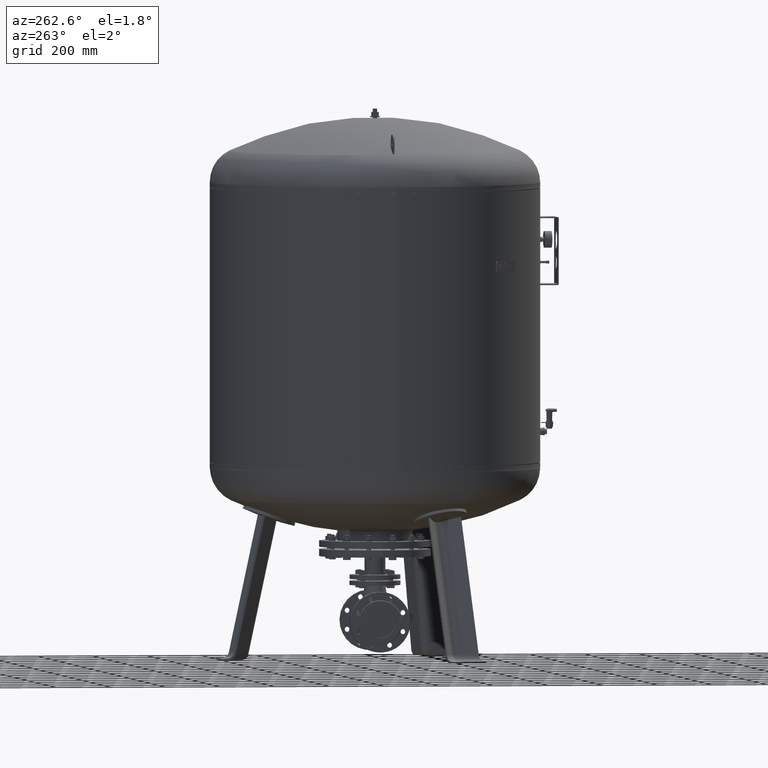
[diagram: clean part render]
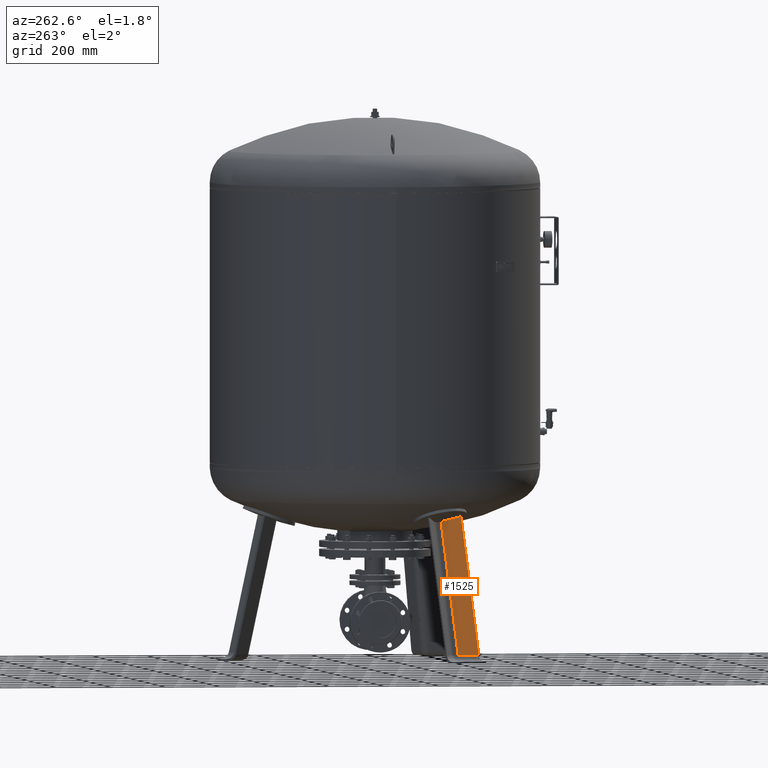
[diagram: same view with one face highlighted and labeled with its STEP entity id]
A machine part, auxiliary view. The second image highlights one B-rep face of the part: STEP entity #1525.
In plain terms, the highlighted planar face has unit normal (-0.9697, 0.1854, 0.1588).
Its self-contained STEP definition (entity closure, byte-faithful):
#1210=CARTESIAN_POINT('',(-315.335436048246950,-200.691767344436240,510.149969666713160));
#1211=VERTEX_POINT('',#1210);
#1229=CARTESIAN_POINT('',(-325.047124528705920,-271.771968126689670,533.843746499036000));
#1230=VERTEX_POINT('',#1229);
#1231=CARTESIAN_POINT('',(-325.047124528705920,-271.771968126689670,533.843746499036000));
#1232=CARTESIAN_POINT('',(-323.211592071711270,-257.513808971361580,528.403592446426270));
#1233=CARTESIAN_POINT('',(-321.307001339405250,-243.225974251741890,523.350498082422290));
#1234=CARTESIAN_POINT('',(-318.331667884720670,-221.687438673815760,516.369477981931600));
#1235=CARTESIAN_POINT('',(-317.307714099314640,-214.406460403978120,514.120476420435810));
#1236=CARTESIAN_POINT('',(-315.957534318820190,-204.991636255338110,511.371950061965830));
#1237=CARTESIAN_POINT('',(-315.647301758491780,-202.840845807966730,510.754973838816850));
#1238=CARTESIAN_POINT('',(-315.335436048246950,-200.691767344436240,510.149969666713160));
#1239=B_SPLINE_CURVE_WITH_KNOTS('',3,(#1231,#1232,#1233,#1234,#1235,#1236,#1237,#1238),.UNSPECIFIED.,.F.,.U.,(4,2,2,4),(536.144034177567730,540.433260676197730,542.629325785795340,543.280185670864850),.UNSPECIFIED.);
#1240=EDGE_CURVE('',#1230,#1211,#1239,.T.);
#1465=CARTESIAN_POINT('',(-418.341095342265480,-325.635267289667180,27.029948423057281));
#1466=VERTEX_POINT('',#1465);
#1467=CARTESIAN_POINT('',(-418.341095342265480,-325.635267289667180,27.029948423057281));
#1468=DIRECTION('',(0.180056805991956,0.103955845408880,0.978147600733805));
#1469=VECTOR('',#1468,518.136319810800960);
#1470=LINE('',#1467,#1469);
#1471=EDGE_CURVE('',#1466,#1230,#1470,.T.);
#1502=CARTESIAN_POINT('',(-430.961068097000860,-332.921411956779370,-41.527282742766886));
#1503=DIRECTION('',(-0.969740897595359,0.185430570007245,0.158802063077709));
#1504=DIRECTION('',(0.180056805991956,0.103955845408880,0.978147600733806));
#1505=AXIS2_PLACEMENT_3D('',#1502,#1503,#1504);
#1506=PLANE('',#1505);
#1507=CARTESIAN_POINT('',(-404.267871061775960,-252.036932639186010,27.029948423057284));
#1508=VERTEX_POINT('',#1507);
#1509=CARTESIAN_POINT('',(-404.267871061775960,-252.036932639186010,27.029948423057284));
#1510=DIRECTION('',(0.180056805991956,0.103955845408880,0.978147600733806));
#1511=VECTOR('',#1510,493.913209909444730);
#1512=LINE('',#1509,#1511);
#1513=EDGE_CURVE('',#1508,#1211,#1512,.T.);
#1514=ORIENTED_EDGE('',*,*,#1513,.F.);
#1515=CARTESIAN_POINT('',(-418.341095342265480,-325.635267289667180,27.029948423057281));
#1516=DIRECTION('',(0.187813845079450,0.982204642422582,4.741265E-017));
#1517=VECTOR('',#1516,74.931772333057609);
#1518=LINE('',#1515,#1517);
#1519=EDGE_CURVE('',#1466,#1508,#1518,.T.);
#1520=ORIENTED_EDGE('',*,*,#1519,.F.);
#1521=ORIENTED_EDGE('',*,*,#1471,.T.);
#1522=ORIENTED_EDGE('',*,*,#1240,.T.);
#1523=EDGE_LOOP('',(#1514,#1520,#1521,#1522));
#1524=FACE_OUTER_BOUND('',#1523,.T.);
#1525=ADVANCED_FACE('',(#1524),#1506,.T.);